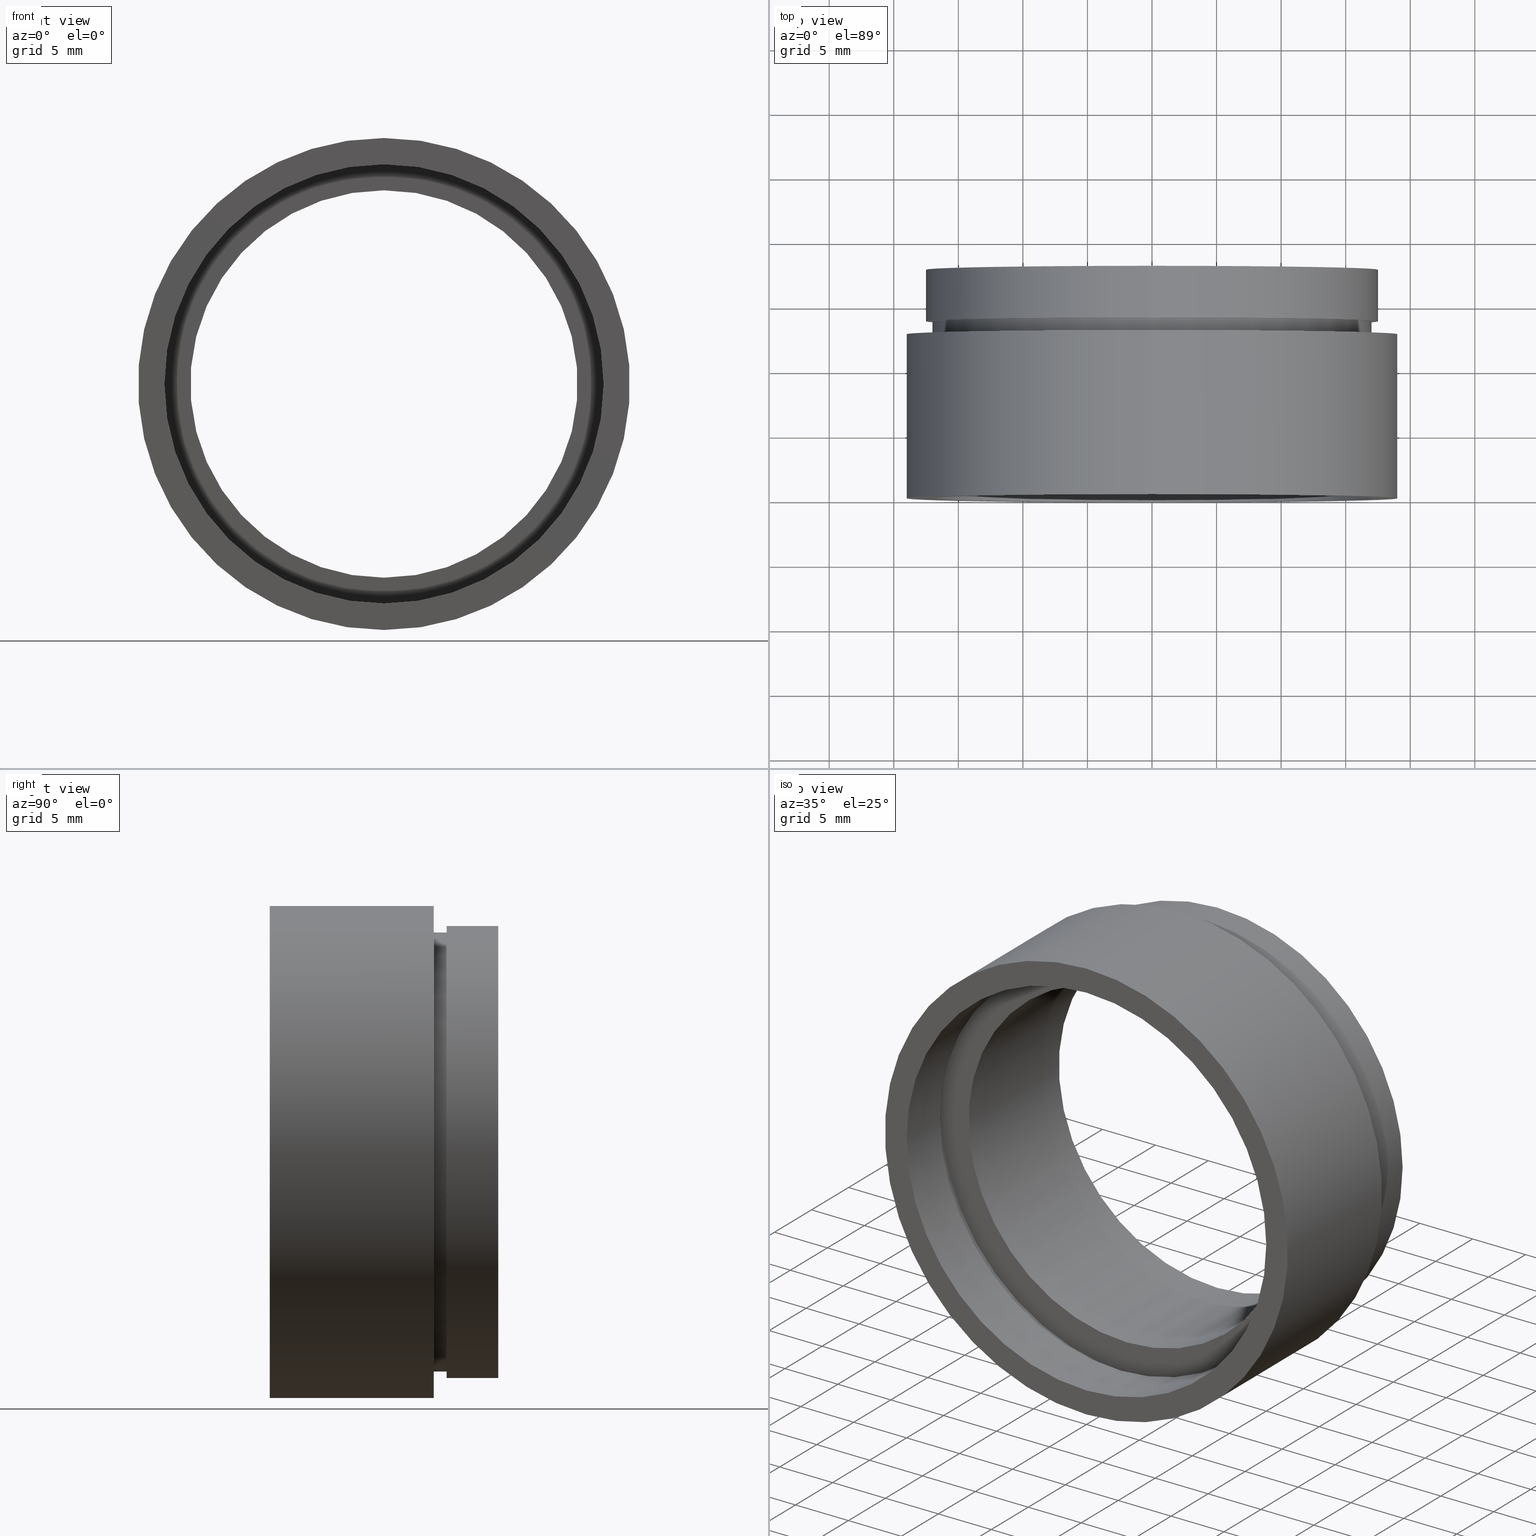
[diagram: canonical four-view strip — front | top / right | iso, engineering-drawing reading convention]
A machine part, canonical four-view strip (front | top / right | iso — engineering-drawing reading convention). The complete STEP part file that produces these views, byte-faithful:
ISO-10303-21;
HEADER;
FILE_DESCRIPTION (( 'STEP AP214' ),
    '1' );
FILE_NAME ('503037.STEP',
    '2019-09-06T01:17:15',
    ( '' ),
    ( '' ),
    'SwSTEP 2.0',
    'SolidWorks 2016',
    '' );
FILE_SCHEMA (( 'AUTOMOTIVE_DESIGN' ));
ENDSEC;

DATA;
#1 = AXIS2_PLACEMENT_3D ( 'NONE', #10, #392, #438 ) ;
#2 = VERTEX_POINT ( 'NONE', #510 ) ;
#3 = EDGE_CURVE ( 'NONE', #357, #29, #509, .T. ) ;
#4 = ADVANCED_FACE ( 'NONE', ( #138 ), #473, .F. ) ;
#5 = CARTESIAN_POINT ( 'NONE',  ( 19.05000000000002200, 12.69999999999998200, 0.0000000000000000000 ) ) ;
#6 = PRESENTATION_STYLE_ASSIGNMENT (( #280 ) ) ;
#7 = PRESENTATION_LAYER_ASSIGNMENT (  '', '', ( #603 ) ) ;
#8 = CARTESIAN_POINT ( 'NONE',  ( 0.0000000000000000000, 4.499999999999976000, 0.0000000000000000000 ) ) ;
#9 = PLANE ( 'NONE',  #194 ) ;
#10 = CARTESIAN_POINT ( 'NONE',  ( 0.0000000000000000000, 17.69999999999999200, 0.0000000000000000000 ) ) ;
#11 = FACE_OUTER_BOUND ( 'NONE', #315, .T. ) ;
#12 = CARTESIAN_POINT ( 'NONE',  ( 0.0000000000000000000, -2.775557561562891400E-014, 0.0000000000000000000 ) ) ;
#13 = CARTESIAN_POINT ( 'NONE',  ( 0.0000000000000000000, 17.69999999999999200, 15.00000000000001800 ) ) ;
#14 =( GEOMETRIC_REPRESENTATION_CONTEXT ( 3 ) GLOBAL_UNCERTAINTY_ASSIGNED_CONTEXT ( ( #154 ) ) GLOBAL_UNIT_ASSIGNED_CONTEXT ( ( #100, #337, #106 ) ) REPRESENTATION_CONTEXT ( 'NONE', 'WORKASPACE' ) );
#15 = ORIENTED_EDGE ( 'NONE', *, *, #126, .F. ) ;
#16 = DIRECTION ( 'NONE',  ( -0.0000000000000000000, 1.000000000000000000, -0.0000000000000000000 ) ) ;
#17 = PRESENTATION_STYLE_ASSIGNMENT (( #300 ) ) ;
#18 = DIRECTION ( 'NONE',  ( -0.0000000000000000000, 1.000000000000000000, -0.0000000000000000000 ) ) ;
#19 = ORIENTED_EDGE ( 'NONE', *, *, #474, .F. ) ;
#20 =( LENGTH_UNIT ( ) NAMED_UNIT ( * ) SI_UNIT ( .MILLI., .METRE. ) );
#21 = EDGE_CURVE ( 'NONE', #101, #439, #173, .T. ) ;
#22 = PLANE ( 'NONE',  #248 ) ;
#23 = STYLED_ITEM ( 'NONE', ( #606 ), #157 ) ;
#24 = AXIS2_PLACEMENT_3D ( 'NONE', #12, #18, #352 ) ;
#25 = SURFACE_STYLE_FILL_AREA ( #334 ) ;
#26 = EDGE_LOOP ( 'NONE', ( #141, #231, #495, #57 ) ) ;
#27 = AXIS2_PLACEMENT_3D ( 'NONE', #488, #215, #387 ) ;
#28 = CIRCLE ( 'NONE', #27, 15.00000000000001600 ) ;
#29 = VERTEX_POINT ( 'NONE', #330 ) ;
#30 = ORIENTED_EDGE ( 'NONE', *, *, #525, .F. ) ;
#31 = FACE_OUTER_BOUND ( 'NONE', #185, .T. ) ;
#32 = UNCERTAINTY_MEASURE_WITH_UNIT (LENGTH_MEASURE( 1.000000000000000100E-005 ), #371, 'distance_accuracy_value', 'NONE');
#33 = EDGE_CURVE ( 'NONE', #41, #47, #86, .T. ) ;
#34 = CARTESIAN_POINT ( 'NONE',  ( 0.0000000000000000000, 161.3761669434274500, 0.0000000000000000000 ) ) ;
#35 = ORIENTED_EDGE ( 'NONE', *, *, #176, .F. ) ;
#36 = EDGE_CURVE ( 'NONE', #29, #181, #410, .T. ) ;
#37 = FILL_AREA_STYLE ('',( #375 ) ) ;
#38 = FACE_BOUND ( 'NONE', #471, .T. ) ;
#39 =( NAMED_UNIT ( * ) SI_UNIT ( $, .STERADIAN. ) SOLID_ANGLE_UNIT ( ) );
#40 = MECHANICAL_DESIGN_GEOMETRIC_PRESENTATION_REPRESENTATION (  '', ( #412 ), #115 ) ;
#41 = VERTEX_POINT ( 'NONE', #354 ) ;
#42 = CARTESIAN_POINT ( 'NONE',  ( 2.081899558550502600E-015, 161.3761669434274500, -17.00000000000001800 ) ) ;
#43 = DIRECTION ( 'NONE',  ( 0.0000000000000000000, 0.0000000000000000000, 1.000000000000000000 ) ) ;
#44 = AXIS2_PLACEMENT_3D ( 'NONE', #572, #284, #379 ) ;
#45 =( LENGTH_UNIT ( ) NAMED_UNIT ( * ) SI_UNIT ( .MILLI., .METRE. ) );
#46 = APPLICATION_PROTOCOL_DEFINITION ( 'draft international standard', 'automotive_design', 1998, #197 ) ;
#47 = VERTEX_POINT ( 'NONE', #64 ) ;
#48 = CARTESIAN_POINT ( 'NONE',  ( 0.0000000000000000000, 5.499999999999976900, 15.00000000000001600 ) ) ;
#49 = DIRECTION ( 'NONE',  ( -0.0000000000000000000, 1.000000000000000000, -0.0000000000000000000 ) ) ;
#50 = FACE_BOUND ( 'NONE', #475, .T. ) ;
#51 = CARTESIAN_POINT ( 'NONE',  ( 0.0000000000000000000, 13.69999999999999000, 17.00000000000001800 ) ) ;
#52 =( NAMED_UNIT ( * ) SI_UNIT ( $, .STERADIAN. ) SOLID_ANGLE_UNIT ( ) );
#53 = EDGE_CURVE ( 'NONE', #357, #168, #269, .T. ) ;
#54 = EDGE_CURVE ( 'NONE', #556, #381, #310, .T. ) ;
#55 = SURFACE_STYLE_FILL_AREA ( #165 ) ;
#56 = CARTESIAN_POINT ( 'NONE',  ( 0.0000000000000000000, 13.69999999999999000, 0.0000000000000000000 ) ) ;
#57 = ORIENTED_EDGE ( 'NONE', *, *, #502, .F. ) ;
#58 = PRODUCT_RELATED_PRODUCT_CATEGORY ( 'part', '', ( #443 ) ) ;
#59 = CARTESIAN_POINT ( 'NONE',  ( 0.0000000000000000000, 161.3761669434274500, 17.50000000000002800 ) ) ;
#60 = CYLINDRICAL_SURFACE ( 'NONE', #414, 17.50000000000002800 ) ;
#61 = CARTESIAN_POINT ( 'NONE',  ( 2.081899558550503400E-015, 4.499999999999976000, -17.00000000000002500 ) ) ;
#62 = DIRECTION ( 'NONE',  ( 0.0000000000000000000, 0.0000000000000000000, 1.000000000000000000 ) ) ;
#63 = STYLED_ITEM ( 'NONE', ( #290 ), #514 ) ;
#64 = CARTESIAN_POINT ( 'NONE',  ( 0.0000000000000000000, 12.69999999999998900, 19.05000000000002200 ) ) ;
#65 = DIRECTION ( 'NONE',  ( -0.0000000000000000000, 1.000000000000000000, -0.0000000000000000000 ) ) ;
#66 = AXIS2_PLACEMENT_3D ( 'NONE', #71, #65, #309 ) ;
#67 = CARTESIAN_POINT ( 'NONE',  ( 0.0000000000000000000, 12.69999999999998900, 0.0000000000000000000 ) ) ;
#68 = ORIENTED_EDGE ( 'NONE', *, *, #402, .T. ) ;
#69 = DIRECTION ( 'NONE',  ( -0.0000000000000000000, 1.000000000000000000, -0.0000000000000000000 ) ) ;
#70 = FILL_AREA_STYLE ('',( #397 ) ) ;
#71 = CARTESIAN_POINT ( 'NONE',  ( 0.0000000000000000000, -2.775557561562891400E-014, 0.0000000000000000000 ) ) ;
#72 = DIRECTION ( 'NONE',  ( -0.0000000000000000000, 1.000000000000000000, -0.0000000000000000000 ) ) ;
#73 = ORIENTED_EDGE ( 'NONE', *, *, #21, .F. ) ;
#74 = CARTESIAN_POINT ( 'NONE',  ( 0.0000000000000000000, 12.69999999999998900, 0.0000000000000000000 ) ) ;
#75 = PRESENTATION_LAYER_ASSIGNMENT (  '', '', ( #232 ) ) ;
#76 = EDGE_CURVE ( 'NONE', #605, #503, #413, .T. ) ;
#77 = LINE ( 'NONE', #531, #84 ) ;
#78 = ORIENTED_EDGE ( 'NONE', *, *, #137, .T. ) ;
#79 = ORIENTED_EDGE ( 'NONE', *, *, #502, .T. ) ;
#80 =( GEOMETRIC_REPRESENTATION_CONTEXT ( 3 ) GLOBAL_UNCERTAINTY_ASSIGNED_CONTEXT ( ( #32 ) ) GLOBAL_UNIT_ASSIGNED_CONTEXT ( ( #371, #236, #617 ) ) REPRESENTATION_CONTEXT ( 'NONE', 'WORKASPACE' ) );
#81 = DIRECTION ( 'NONE',  ( -0.0000000000000000000, 1.000000000000000000, -0.0000000000000000000 ) ) ;
#82 = ORIENTED_EDGE ( 'NONE', *, *, #272, .T. ) ;
#83 = AXIS2_PLACEMENT_3D ( 'NONE', #299, #105, #246 ) ;
#84 = VECTOR ( 'NONE', #196, 1000.000000000000000 ) ;
#85 = ORIENTED_EDGE ( 'NONE', *, *, #298, .F. ) ;
#86 = CIRCLE ( 'NONE', #136, 19.05000000000002200 ) ;
#87 = EDGE_CURVE ( 'NONE', #381, #556, #273, .T. ) ;
#88 = EDGE_LOOP ( 'NONE', ( #538, #336, #550, #270 ) ) ;
#89 = FACE_OUTER_BOUND ( 'NONE', #134, .T. ) ;
#90 = COLOUR_RGB ( '',1.000000000000000000, 1.000000000000000000, 1.000000000000000000 ) ;
#91 = PRESENTATION_LAYER_ASSIGNMENT (  '', '', ( #23 ) ) ;
#92 = ORIENTED_EDGE ( 'NONE', *, *, #546, .T. ) ;
#93 =( NAMED_UNIT ( * ) PLANE_ANGLE_UNIT ( ) SI_UNIT ( $, .RADIAN. ) );
#94 = DIRECTION ( 'NONE',  ( -0.0000000000000000000, 1.000000000000000000, -0.0000000000000000000 ) ) ;
#95 =( GEOMETRIC_REPRESENTATION_CONTEXT ( 3 ) GLOBAL_UNCERTAINTY_ASSIGNED_CONTEXT ( ( #430 ) ) GLOBAL_UNIT_ASSIGNED_CONTEXT ( ( #341, #470, #52 ) ) REPRESENTATION_CONTEXT ( 'NONE', 'WORKASPACE' ) );
#96 = SURFACE_SIDE_STYLE ('',( #230 ) ) ;
#97 = EDGE_LOOP ( 'NONE', ( #342, #393 ) ) ;
#98 = MECHANICAL_DESIGN_GEOMETRIC_PRESENTATION_REPRESENTATION (  '', ( #258 ), #317 ) ;
#99 = COLOUR_RGB ( '',1.000000000000000000, 1.000000000000000000, 1.000000000000000000 ) ;
#100 =( LENGTH_UNIT ( ) NAMED_UNIT ( * ) SI_UNIT ( .MILLI., .METRE. ) );
#101 = VERTEX_POINT ( 'NONE', #542 ) ;
#102 = ADVANCED_FACE ( 'NONE', ( #506 ), #131, .F. ) ;
#103 = CARTESIAN_POINT ( 'NONE',  ( 0.0000000000000000000, 4.499999999999976000, 0.0000000000000000000 ) ) ;
#104 = FILL_AREA_STYLE_COLOUR ( '', #278 ) ;
#105 = DIRECTION ( 'NONE',  ( -0.0000000000000000000, 1.000000000000000000, -0.0000000000000000000 ) ) ;
#106 =( NAMED_UNIT ( * ) SI_UNIT ( $, .STERADIAN. ) SOLID_ANGLE_UNIT ( ) );
#107 = VERTEX_POINT ( 'NONE', #119 ) ;
#108 = CARTESIAN_POINT ( 'NONE',  ( 2.155378366499344400E-015, 5.499999999999976900, -17.60000000000002300 ) ) ;
#109 =( GEOMETRIC_REPRESENTATION_CONTEXT ( 3 ) GLOBAL_UNCERTAINTY_ASSIGNED_CONTEXT ( ( #366 ) ) GLOBAL_UNIT_ASSIGNED_CONTEXT ( ( #238, #537, #485 ) ) REPRESENTATION_CONTEXT ( 'NONE', 'WORKASPACE' ) );
#110 = ORIENTED_EDGE ( 'NONE', *, *, #428, .T. ) ;
#111 = ORIENTED_EDGE ( 'NONE', *, *, #368, .T. ) ;
#112 = EDGE_CURVE ( 'NONE', #286, #434, #28, .T. ) ;
#113 = ADVANCED_FACE ( 'NONE', ( #31, #575 ), #9, .F. ) ;
#114 = CARTESIAN_POINT ( 'NONE',  ( 2.332952152375710400E-015, -2.775557561562891400E-014, -19.05000000000002200 ) ) ;
#115 =( GEOMETRIC_REPRESENTATION_CONTEXT ( 3 ) GLOBAL_UNCERTAINTY_ASSIGNED_CONTEXT ( ( #429 ) ) GLOBAL_UNIT_ASSIGNED_CONTEXT ( ( #254, #259, #584 ) ) REPRESENTATION_CONTEXT ( 'NONE', 'WORKASPACE' ) );
#116 = CARTESIAN_POINT ( 'NONE',  ( 0.0000000000000000000, 13.69999999999999000, 0.0000000000000000000 ) ) ;
#117 = DIRECTION ( 'NONE',  ( -0.0000000000000000000, 1.000000000000000000, 0.0000000000000000000 ) ) ;
#118 = CIRCLE ( 'NONE', #568, 17.50000000000002800 ) ;
#119 = CARTESIAN_POINT ( 'NONE',  ( 0.0000000000000000000, 4.499999999999976000, 17.60000000000002300 ) ) ;
#120 = DIRECTION ( 'NONE',  ( -0.0000000000000000000, 1.000000000000000000, -0.0000000000000000000 ) ) ;
#121 = SURFACE_SIDE_STYLE ('',( #526 ) ) ;
#122 = COLOUR_RGB ( '',1.000000000000000000, 1.000000000000000000, 1.000000000000000000 ) ;
#123 = DIRECTION ( 'NONE',  ( -0.0000000000000000000, 1.000000000000000000, -0.0000000000000000000 ) ) ;
#124 = ORIENTED_EDGE ( 'NONE', *, *, #525, .T. ) ;
#125 = CARTESIAN_POINT ( 'NONE',  ( 0.0000000000000000000, 13.69999999999999000, 17.50000000000002800 ) ) ;
#126 = EDGE_CURVE ( 'NONE', #135, #419, #164, .T. ) ;
#127 = ORIENTED_EDGE ( 'NONE', *, *, #608, .F. ) ;
#128 = PRESENTATION_LAYER_ASSIGNMENT (  '', '', ( #548 ) ) ;
#129 = AXIS2_PLACEMENT_3D ( 'NONE', #5, #588, #398 ) ;
#130 = VERTEX_POINT ( 'NONE', #114 ) ;
#131 = CYLINDRICAL_SURFACE ( 'NONE', #166, 17.60000000000002300 ) ;
#132 = EDGE_LOOP ( 'NONE', ( #268, #247, #162, #549 ) ) ;
#133 = PRESENTATION_STYLE_ASSIGNMENT (( #192 ) ) ;
#134 = EDGE_LOOP ( 'NONE', ( #455, #92, #30, #415 ) ) ;
#135 = VERTEX_POINT ( 'NONE', #13 ) ;
#136 = AXIS2_PLACEMENT_3D ( 'NONE', #67, #441, #167 ) ;
#137 = EDGE_CURVE ( 'NONE', #130, #201, #321, .T. ) ;
#138 = FACE_OUTER_BOUND ( 'NONE', #88, .T. ) ;
#139 = DIRECTION ( 'NONE',  ( 0.0000000000000000000, -1.000000000000000000, 0.0000000000000000000 ) ) ;
#140 = AXIS2_PLACEMENT_3D ( 'NONE', #34, #504, #369 ) ;
#141 = ORIENTED_EDGE ( 'NONE', *, *, #576, .F. ) ;
#142 = SURFACE_SIDE_STYLE ('',( #319 ) ) ;
#143 = CARTESIAN_POINT ( 'NONE',  ( 0.0000000000000000000, 0.0000000000000000000, 0.0000000000000000000 ) ) ;
#144 = ADVANCED_FACE ( 'NONE', ( #338, #304 ), #536, .F. ) ;
#145 = ORIENTED_EDGE ( 'NONE', *, *, #36, .T. ) ;
#146 = DIRECTION ( 'NONE',  ( -0.0000000000000000000, 1.000000000000000000, -0.0000000000000000000 ) ) ;
#147 = PRODUCT_CONTEXT ( 'NONE', #424, 'mechanical' ) ;
#148 = ADVANCED_FACE ( 'NONE', ( #198 ), #490, .F. ) ;
#149 = CARTESIAN_POINT ( 'NONE',  ( 0.0000000000000000000, 4.499999999999976000, 0.0000000000000000000 ) ) ;
#150 = EDGE_CURVE ( 'NONE', #605, #621, #541, .T. ) ;
#151 = ORIENTED_EDGE ( 'NONE', *, *, #601, .T. ) ;
#152 = MANIFOLD_SOLID_BREP ( '��ת1', #175 ) ;
#153 = CARTESIAN_POINT ( 'NONE',  ( 0.0000000000000000000, 161.3761669434274500, 0.0000000000000000000 ) ) ;
#154 = UNCERTAINTY_MEASURE_WITH_UNIT (LENGTH_MEASURE( 1.000000000000000100E-005 ), #100, 'distance_accuracy_value', 'NONE');
#155 = AXIS2_PLACEMENT_3D ( 'NONE', #467, #324, #566 ) ;
#156 = SURFACE_STYLE_FILL_AREA ( #301 ) ;
#157 = ADVANCED_FACE ( 'NONE', ( #619 ), #582, .F. ) ;
#158 = CARTESIAN_POINT ( 'NONE',  ( 0.0000000000000000000, 12.69999999999998900, 0.0000000000000000000 ) ) ;
#159 = AXIS2_PLACEMENT_3D ( 'NONE', #143, #296, #289 ) ;
#160 = VECTOR ( 'NONE', #146, 1000.000000000000000 ) ;
#161 = DIRECTION ( 'NONE',  ( 0.0000000000000000000, 0.0000000000000000000, 1.000000000000000000 ) ) ;
#162 = ORIENTED_EDGE ( 'NONE', *, *, #245, .F. ) ;
#163 = CARTESIAN_POINT ( 'NONE',  ( 0.0000000000000000000, 161.3761669434274500, 17.00000000000001800 ) ) ;
#164 = CIRCLE ( 'NONE', #226, 15.00000000000001800 ) ;
#165 = FILL_AREA_STYLE ('',( #210 ) ) ;
#166 = AXIS2_PLACEMENT_3D ( 'NONE', #545, #349, #62 ) ;
#167 = DIRECTION ( 'NONE',  ( 0.0000000000000000000, 0.0000000000000000000, 1.000000000000000000 ) ) ;
#168 = VERTEX_POINT ( 'NONE', #125 ) ;
#169 =( LENGTH_UNIT ( ) NAMED_UNIT ( * ) SI_UNIT ( .MILLI., .METRE. ) );
#170 = DIRECTION ( 'NONE',  ( 0.0000000000000000000, 0.0000000000000000000, 1.000000000000000000 ) ) ;
#171 = ORIENTED_EDGE ( 'NONE', *, *, #272, .F. ) ;
#172 = DIRECTION ( 'NONE',  ( -0.0000000000000000000, 1.000000000000000000, -0.0000000000000000000 ) ) ;
#173 = CIRCLE ( 'NONE', #203, 17.00000000000002500 ) ;
#174 = AXIS2_PLACEMENT_3D ( 'NONE', #179, #555, #406 ) ;
#175 = CLOSED_SHELL ( 'NONE', ( #157, #339, #4, #243, #624, #616, #476, #386, #144, #482, #113, #205, #294, #287, #522, #102, #200, #148 ) ) ;
#176 = EDGE_CURVE ( 'NONE', #621, #605, #445, .T. ) ;
#177 = FACE_BOUND ( 'NONE', #491, .T. ) ;
#178 = ORIENTED_EDGE ( 'NONE', *, *, #112, .T. ) ;
#179 = CARTESIAN_POINT ( 'NONE',  ( 0.0000000000000000000, 13.69999999999999000, 0.0000000000000000000 ) ) ;
#180 = CARTESIAN_POINT ( 'NONE',  ( 17.00000000000002500, 4.499999999999983100, 0.0000000000000000000 ) ) ;
#181 = VERTEX_POINT ( 'NONE', #311 ) ;
#182 = COLOUR_RGB ( '',1.000000000000000000, 1.000000000000000000, 1.000000000000000000 ) ;
#183 = EDGE_CURVE ( 'NONE', #365, #381, #557, .T. ) ;
#184 = CARTESIAN_POINT ( 'NONE',  ( 0.0000000000000000000, 161.3761669434274500, 17.00000000000002100 ) ) ;
#185 = EDGE_LOOP ( 'NONE', ( #559, #227 ) ) ;
#186 = PRODUCT_DEFINITION_CONTEXT ( 'detailed design', #197, 'design' ) ;
#187 = PRESENTATION_LAYER_ASSIGNMENT (  '', '', ( #497 ) ) ;
#188 = VECTOR ( 'NONE', #120, 1000.000000000000000 ) ;
#189 = DIRECTION ( 'NONE',  ( -0.0000000000000000000, 1.000000000000000000, -0.0000000000000000000 ) ) ;
#190 = PRESENTATION_LAYER_ASSIGNMENT (  '', '', ( #63 ) ) ;
#191 = CARTESIAN_POINT ( 'NONE',  ( 0.0000000000000000000, 17.69999999999999200, 0.0000000000000000000 ) ) ;
#192 = SURFACE_STYLE_USAGE ( .BOTH. , #563 ) ;
#193 = ORIENTED_EDGE ( 'NONE', *, *, #206, .T. ) ;
#194 = AXIS2_PLACEMENT_3D ( 'NONE', #257, #117, #170 ) ;
#195 = FACE_OUTER_BOUND ( 'NONE', #255, .T. ) ;
#196 = DIRECTION ( 'NONE',  ( -0.0000000000000000000, 1.000000000000000000, -0.0000000000000000000 ) ) ;
#197 = APPLICATION_CONTEXT ( 'automotive_design' ) ;
#198 = FACE_OUTER_BOUND ( 'NONE', #446, .T. ) ;
#199 = DIRECTION ( 'NONE',  ( 0.0000000000000000000, 0.0000000000000000000, 1.000000000000000000 ) ) ;
#200 = ADVANCED_FACE ( 'NONE', ( #50, #271 ), #22, .F. ) ;
#201 = VERTEX_POINT ( 'NONE', #229 ) ;
#202 = DIRECTION ( 'NONE',  ( 0.0000000000000000000, 0.0000000000000000000, 1.000000000000000000 ) ) ;
#203 = AXIS2_PLACEMENT_3D ( 'NONE', #592, #16, #395 ) ;
#204 = CYLINDRICAL_SURFACE ( 'NONE', #499, 19.05000000000002200 ) ;
#205 = ADVANCED_FACE ( 'NONE', ( #408 ), #367, .T. ) ;
#206 = EDGE_CURVE ( 'NONE', #2, #439, #458, .T. ) ;
#207 = CARTESIAN_POINT ( 'NONE',  ( 0.0000000000000000000, 161.3761669434274500, 0.0000000000000000000 ) ) ;
#208 = FILL_AREA_STYLE_COLOUR ( '', #275 ) ;
#209 = DIRECTION ( 'NONE',  ( -0.0000000000000000000, 1.000000000000000000, -0.0000000000000000000 ) ) ;
#210 = FILL_AREA_STYLE_COLOUR ( '', #182 ) ;
#211 = ORIENTED_EDGE ( 'NONE', *, *, #36, .F. ) ;
#212 = CARTESIAN_POINT ( 'NONE',  ( 0.0000000000000000000, 5.499999999999976900, 17.60000000000002300 ) ) ;
#213 = VECTOR ( 'NONE', #295, 1000.000000000000000 ) ;
#214 = SURFACE_STYLE_FILL_AREA ( #613 ) ;
#215 = DIRECTION ( 'NONE',  ( -0.0000000000000000000, 1.000000000000000000, -0.0000000000000000000 ) ) ;
#216 = EDGE_LOOP ( 'NONE', ( #171, #306, #297, #228 ) ) ;
#217 = SURFACE_STYLE_USAGE ( .BOTH. , #540 ) ;
#218 = ORIENTED_EDGE ( 'NONE', *, *, #219, .F. ) ;
#219 = EDGE_CURVE ( 'NONE', #242, #101, #360, .T. ) ;
#220 = UNCERTAINTY_MEASURE_WITH_UNIT (LENGTH_MEASURE( 1.000000000000000100E-005 ), #169, 'distance_accuracy_value', 'NONE');
#221 = CIRCLE ( 'NONE', #585, 17.00000000000001800 ) ;
#222 = FACE_OUTER_BOUND ( 'NONE', #589, .T. ) ;
#223 = MECHANICAL_DESIGN_GEOMETRIC_PRESENTATION_REPRESENTATION (  '', ( #548 ), #80 ) ;
#224 = AXIS2_PLACEMENT_3D ( 'NONE', #103, #620, #523 ) ;
#225 = VERTEX_POINT ( 'NONE', #276 ) ;
#226 = AXIS2_PLACEMENT_3D ( 'NONE', #590, #594, #308 ) ;
#227 = ORIENTED_EDGE ( 'NONE', *, *, #53, .F. ) ;
#228 = ORIENTED_EDGE ( 'NONE', *, *, #601, .F. ) ;
#229 = CARTESIAN_POINT ( 'NONE',  ( 0.0000000000000000000, -2.775557561562891400E-014, 19.05000000000002200 ) ) ;
#230 = SURFACE_STYLE_FILL_AREA ( #331 ) ;
#231 = ORIENTED_EDGE ( 'NONE', *, *, #183, .T. ) ;
#232 = STYLED_ITEM ( 'NONE', ( #6 ), #4 ) ;
#233 = ORIENTED_EDGE ( 'NONE', *, *, #33, .T. ) ;
#234 = CARTESIAN_POINT ( 'NONE',  ( 17.50000000000002800, 17.69999999999998500, 0.0000000000000000000 ) ) ;
#235 = PRODUCT_DEFINITION_SHAPE ( 'NONE', 'NONE',  #372 ) ;
#236 =( NAMED_UNIT ( * ) PLANE_ANGLE_UNIT ( ) SI_UNIT ( $, .RADIAN. ) );
#237 = SURFACE_STYLE_USAGE ( .BOTH. , #142 ) ;
#238 =( LENGTH_UNIT ( ) NAMED_UNIT ( * ) SI_UNIT ( .MILLI., .METRE. ) );
#239 = DIRECTION ( 'NONE',  ( 0.0000000000000000000, 0.0000000000000000000, 1.000000000000000000 ) ) ;
#240 = CARTESIAN_POINT ( 'NONE',  ( 2.155378366499344400E-015, 4.499999999999976000, -17.60000000000002300 ) ) ;
#241 = DIRECTION ( 'NONE',  ( -0.0000000000000000000, 1.000000000000000000, -0.0000000000000000000 ) ) ;
#242 = VERTEX_POINT ( 'NONE', #279 ) ;
#243 = ADVANCED_FACE ( 'NONE', ( #423 ), #60, .T. ) ;
#244 = CARTESIAN_POINT ( 'NONE',  ( 0.0000000000000000000, -2.775557561562891400E-014, 0.0000000000000000000 ) ) ;
#245 = EDGE_CURVE ( 'NONE', #181, #29, #553, .T. ) ;
#246 = DIRECTION ( 'NONE',  ( 0.0000000000000000000, 0.0000000000000000000, 1.000000000000000000 ) ) ;
#247 = ORIENTED_EDGE ( 'NONE', *, *, #3, .T. ) ;
#248 = AXIS2_PLACEMENT_3D ( 'NONE', #180, #595, #612 ) ;
#249 = CARTESIAN_POINT ( 'NONE',  ( 17.60000000000002300, 5.499999999999983100, 0.0000000000000000000 ) ) ;
#250 = CARTESIAN_POINT ( 'NONE',  ( 0.0000000000000000000, 12.69999999999998900, 17.00000000000001800 ) ) ;
#251 = MECHANICAL_DESIGN_GEOMETRIC_PRESENTATION_REPRESENTATION (  '', ( #63 ), #14 ) ;
#252 = CIRCLE ( 'NONE', #604, 15.00000000000001600 ) ;
#253 = CARTESIAN_POINT ( 'NONE',  ( 2.332952152375710400E-015, 161.3761669434274500, -19.05000000000002200 ) ) ;
#254 =( LENGTH_UNIT ( ) NAMED_UNIT ( * ) SI_UNIT ( .MILLI., .METRE. ) );
#255 = EDGE_LOOP ( 'NONE', ( #530, #82, #316, #596 ) ) ;
#256 = CARTESIAN_POINT ( 'NONE',  ( 0.0000000000000000000, 17.69999999999999200, 0.0000000000000000000 ) ) ;
#257 = CARTESIAN_POINT ( 'NONE',  ( 17.00000000000001800, 13.69999999999998300, 0.0000000000000000000 ) ) ;
#258 = STYLED_ITEM ( 'NONE', ( #17 ), #148 ) ;
#259 =( NAMED_UNIT ( * ) PLANE_ANGLE_UNIT ( ) SI_UNIT ( $, .RADIAN. ) );
#260 = ORIENTED_EDGE ( 'NONE', *, *, #206, .F. ) ;
#261 = CARTESIAN_POINT ( 'NONE',  ( 0.0000000000000000000, 161.3761669434274500, 0.0000000000000000000 ) ) ;
#262 =( NAMED_UNIT ( * ) PLANE_ANGLE_UNIT ( ) SI_UNIT ( $, .RADIAN. ) );
#263 = ORIENTED_EDGE ( 'NONE', *, *, #402, .F. ) ;
#264 = AXIS2_PLACEMENT_3D ( 'NONE', #362, #81, #350 ) ;
#265 = VECTOR ( 'NONE', #376, 1000.000000000000000 ) ;
#266 = CIRCLE ( 'NONE', #24, 19.05000000000002200 ) ;
#267 = VECTOR ( 'NONE', #189, 1000.000000000000000 ) ;
#268 = ORIENTED_EDGE ( 'NONE', *, *, #561, .T. ) ;
#269 = CIRCLE ( 'NONE', #174, 17.50000000000002800 ) ;
#270 = ORIENTED_EDGE ( 'NONE', *, *, #448, .F. ) ;
#271 = FACE_OUTER_BOUND ( 'NONE', #564, .T. ) ;
#272 = EDGE_CURVE ( 'NONE', #621, #225, #600, .T. ) ;
#273 = CIRCLE ( 'NONE', #494, 17.60000000000002300 ) ;
#274 = DIRECTION ( 'NONE',  ( -0.0000000000000000000, 1.000000000000000000, -0.0000000000000000000 ) ) ;
#275 = COLOUR_RGB ( '',1.000000000000000000, 1.000000000000000000, 1.000000000000000000 ) ;
#276 = CARTESIAN_POINT ( 'NONE',  ( 2.081899558550502600E-015, 13.69999999999999000, -17.00000000000001800 ) ) ;
#277 =( GEOMETRIC_REPRESENTATION_CONTEXT ( 3 ) GLOBAL_UNCERTAINTY_ASSIGNED_CONTEXT ( ( #347 ) ) GLOBAL_UNIT_ASSIGNED_CONTEXT ( ( #370, #93, #416 ) ) REPRESENTATION_CONTEXT ( 'NONE', 'WORKASPACE' ) );
#278 = COLOUR_RGB ( '',1.000000000000000000, 1.000000000000000000, 1.000000000000000000 ) ;
#279 = CARTESIAN_POINT ( 'NONE',  ( 0.0000000000000000000, -2.775557561562891400E-014, 17.00000000000002100 ) ) ;
#280 = SURFACE_STYLE_USAGE ( .BOTH. , #388 ) ;
#281 = AXIS2_PLACEMENT_3D ( 'NONE', #481, #49, #43 ) ;
#282 = SURFACE_STYLE_USAGE ( .BOTH. , #96 ) ;
#283 = CARTESIAN_POINT ( 'NONE',  ( 1.836970198721032000E-015, 161.3761669434274500, -15.00000000000001600 ) ) ;
#284 = DIRECTION ( 'NONE',  ( -0.0000000000000000000, 1.000000000000000000, -0.0000000000000000000 ) ) ;
#285 = PRESENTATION_LAYER_ASSIGNMENT (  '', '', ( #258 ) ) ;
#286 = VERTEX_POINT ( 'NONE', #421 ) ;
#287 = ADVANCED_FACE ( 'NONE', ( #222 ), #498, .F. ) ;
#288 = DIRECTION ( 'NONE',  ( 0.0000000000000000000, 0.0000000000000000000, 1.000000000000000000 ) ) ;
#289 = DIRECTION ( 'NONE',  ( 1.000000000000000000, 0.0000000000000000000, 0.0000000000000000000 ) ) ;
#290 = PRESENTATION_STYLE_ASSIGNMENT (( #516 ) ) ;
#291 = VECTOR ( 'NONE', #469, 1000.000000000000000 ) ;
#292 = DIRECTION ( 'NONE',  ( -0.0000000000000000000, 1.000000000000000000, -0.0000000000000000000 ) ) ;
#293 = DIRECTION ( 'NONE',  ( -0.0000000000000000000, 1.000000000000000000, -0.0000000000000000000 ) ) ;
#294 = ADVANCED_FACE ( 'NONE', ( #38, #11 ), #507, .F. ) ;
#295 = DIRECTION ( 'NONE',  ( -0.0000000000000000000, 1.000000000000000000, -0.0000000000000000000 ) ) ;
#296 = DIRECTION ( 'NONE',  ( 0.0000000000000000000, 0.0000000000000000000, 1.000000000000000000 ) ) ;
#297 = ORIENTED_EDGE ( 'NONE', *, *, #76, .T. ) ;
#298 = EDGE_CURVE ( 'NONE', #2, #242, #512, .T. ) ;
#299 = CARTESIAN_POINT ( 'NONE',  ( 0.0000000000000000000, 161.3761669434274500, 0.0000000000000000000 ) ) ;
#300 = SURFACE_STYLE_USAGE ( .BOTH. , #121 ) ;
#301 = FILL_AREA_STYLE ('',( #208 ) ) ;
#302 = FACE_OUTER_BOUND ( 'NONE', #216, .T. ) ;
#303 = DIRECTION ( 'NONE',  ( -0.0000000000000000000, 1.000000000000000000, -0.0000000000000000000 ) ) ;
#304 = FACE_OUTER_BOUND ( 'NONE', #401, .T. ) ;
#305 = DIRECTION ( 'NONE',  ( -0.0000000000000000000, 1.000000000000000000, -0.0000000000000000000 ) ) ;
#306 = ORIENTED_EDGE ( 'NONE', *, *, #176, .T. ) ;
#307 = DIRECTION ( 'NONE',  ( -0.0000000000000000000, 1.000000000000000000, -0.0000000000000000000 ) ) ;
#308 = DIRECTION ( 'NONE',  ( 0.0000000000000000000, 0.0000000000000000000, 1.000000000000000000 ) ) ;
#309 = DIRECTION ( 'NONE',  ( 0.0000000000000000000, 0.0000000000000000000, 1.000000000000000000 ) ) ;
#310 = CIRCLE ( 'NONE', #264, 17.60000000000002300 ) ;
#311 = CARTESIAN_POINT ( 'NONE',  ( 0.0000000000000000000, 17.69999999999999200, 17.50000000000002800 ) ) ;
#312 = ORIENTED_EDGE ( 'NONE', *, *, #463, .T. ) ;
#313 = LINE ( 'NONE', #253, #188 ) ;
#314 = AXIS2_PLACEMENT_3D ( 'NONE', #74, #597, #492 ) ;
#315 = EDGE_LOOP ( 'NONE', ( #611, #145 ) ) ;
#316 = ORIENTED_EDGE ( 'NONE', *, *, #428, .F. ) ;
#317 =( GEOMETRIC_REPRESENTATION_CONTEXT ( 3 ) GLOBAL_UNCERTAINTY_ASSIGNED_CONTEXT ( ( #220 ) ) GLOBAL_UNIT_ASSIGNED_CONTEXT ( ( #169, #346, #436 ) ) REPRESENTATION_CONTEXT ( 'NONE', 'WORKASPACE' ) );
#318 = CIRCLE ( 'NONE', #437, 17.60000000000002300 ) ;
#319 = SURFACE_STYLE_FILL_AREA ( #37 ) ;
#320 = EDGE_CURVE ( 'NONE', #286, #419, #390, .T. ) ;
#321 = CIRCLE ( 'NONE', #66, 19.05000000000002200 ) ;
#322 = ORIENTED_EDGE ( 'NONE', *, *, #496, .T. ) ;
#323 = UNCERTAINTY_MEASURE_WITH_UNIT (LENGTH_MEASURE( 1.000000000000000100E-005 ), #20, 'distance_accuracy_value', 'NONE');
#324 = DIRECTION ( 'NONE',  ( -0.0000000000000000000, 1.000000000000000000, -0.0000000000000000000 ) ) ;
#325 = VECTOR ( 'NONE', #292, 1000.000000000000000 ) ;
#326 = AXIS2_PLACEMENT_3D ( 'NONE', #567, #94, #614 ) ;
#327 = DIRECTION ( 'NONE',  ( 0.0000000000000000000, 0.0000000000000000000, 1.000000000000000000 ) ) ;
#328 = EDGE_LOOP ( 'NONE', ( #456, #78, #322, #579 ) ) ;
#329 = CARTESIAN_POINT ( 'NONE',  ( 2.081899558550503000E-015, 161.3761669434274500, -17.00000000000002100 ) ) ;
#330 = CARTESIAN_POINT ( 'NONE',  ( 2.143131898507871800E-015, 17.69999999999999200, -17.50000000000002800 ) ) ;
#331 = FILL_AREA_STYLE ('',( #615 ) ) ;
#332 = ORIENTED_EDGE ( 'NONE', *, *, #608, .T. ) ;
#333 = LINE ( 'NONE', #581, #213 ) ;
#334 = FILL_AREA_STYLE ('',( #104 ) ) ;
#335 = PRESENTATION_STYLE_ASSIGNMENT (( #237 ) ) ;
#336 = ORIENTED_EDGE ( 'NONE', *, *, #320, .T. ) ;
#337 =( NAMED_UNIT ( * ) PLANE_ANGLE_UNIT ( ) SI_UNIT ( $, .RADIAN. ) );
#338 = FACE_BOUND ( 'NONE', #451, .T. ) ;
#339 = ADVANCED_FACE ( 'NONE', ( #374 ), #533, .F. ) ;
#340 = DIRECTION ( 'NONE',  ( 0.0000000000000000000, 0.0000000000000000000, 1.000000000000000000 ) ) ;
#341 =( LENGTH_UNIT ( ) NAMED_UNIT ( * ) SI_UNIT ( .MILLI., .METRE. ) );
#342 = ORIENTED_EDGE ( 'NONE', *, *, #558, .F. ) ;
#343 = CIRCLE ( 'NONE', #224, 17.00000000000002500 ) ;
#344 = PRESENTATION_LAYER_ASSIGNMENT (  '', '', ( #412 ) ) ;
#345 = CARTESIAN_POINT ( 'NONE',  ( 0.0000000000000000000, -2.775557561562891400E-014, 0.0000000000000000000 ) ) ;
#346 =( NAMED_UNIT ( * ) PLANE_ANGLE_UNIT ( ) SI_UNIT ( $, .RADIAN. ) );
#347 = UNCERTAINTY_MEASURE_WITH_UNIT (LENGTH_MEASURE( 1.000000000000000100E-005 ), #370, 'distance_accuracy_value', 'NONE');
#348 = DIRECTION ( 'NONE',  ( 0.0000000000000000000, 0.0000000000000000000, 1.000000000000000000 ) ) ;
#349 = DIRECTION ( 'NONE',  ( -0.0000000000000000000, 1.000000000000000000, -0.0000000000000000000 ) ) ;
#350 = DIRECTION ( 'NONE',  ( 0.0000000000000000000, 0.0000000000000000000, 1.000000000000000000 ) ) ;
#351 = ORIENTED_EDGE ( 'NONE', *, *, #219, .T. ) ;
#352 = DIRECTION ( 'NONE',  ( 0.0000000000000000000, 0.0000000000000000000, 1.000000000000000000 ) ) ;
#353 = FILL_AREA_STYLE_COLOUR ( '', #122 ) ;
#354 = CARTESIAN_POINT ( 'NONE',  ( 2.332952152375710400E-015, 12.69999999999998900, -19.05000000000002200 ) ) ;
#355 = CYLINDRICAL_SURFACE ( 'NONE', #281, 19.05000000000002200 ) ;
#356 = DIRECTION ( 'NONE',  ( 0.0000000000000000000, 0.0000000000000000000, 1.000000000000000000 ) ) ;
#357 = VERTEX_POINT ( 'NONE', #384 ) ;
#358 =( NAMED_UNIT ( * ) SI_UNIT ( $, .STERADIAN. ) SOLID_ANGLE_UNIT ( ) );
#359 = CARTESIAN_POINT ( 'NONE',  ( 2.155378366499344400E-015, 161.3761669434274500, -17.60000000000002300 ) ) ;
#360 = LINE ( 'NONE', #184, #521 ) ;
#361 = AXIS2_PLACEMENT_3D ( 'NONE', #571, #622, #340 ) ;
#362 = CARTESIAN_POINT ( 'NONE',  ( 0.0000000000000000000, 5.499999999999976900, 0.0000000000000000000 ) ) ;
#363 = EDGE_LOOP ( 'NONE', ( #598, #127, #79, #404 ) ) ;
#364 = SURFACE_STYLE_FILL_AREA ( #493 ) ;
#365 = VERTEX_POINT ( 'NONE', #240 ) ;
#366 = UNCERTAINTY_MEASURE_WITH_UNIT (LENGTH_MEASURE( 1.000000000000000100E-005 ), #238, 'distance_accuracy_value', 'NONE');
#367 = CYLINDRICAL_SURFACE ( 'NONE', #155, 17.50000000000002800 ) ;
#368 = EDGE_CURVE ( 'NONE', #439, #101, #343, .T. ) ;
#369 = DIRECTION ( 'NONE',  ( 0.0000000000000000000, 0.0000000000000000000, 1.000000000000000000 ) ) ;
#370 =( LENGTH_UNIT ( ) NAMED_UNIT ( * ) SI_UNIT ( .MILLI., .METRE. ) );
#371 =( LENGTH_UNIT ( ) NAMED_UNIT ( * ) SI_UNIT ( .MILLI., .METRE. ) );
#372 = PRODUCT_DEFINITION ( 'δ֪', '', #409, #186 ) ;
#373 = CIRCLE ( 'NONE', #417, 17.00000000000002100 ) ;
#374 = FACE_OUTER_BOUND ( 'NONE', #26, .T. ) ;
#375 = FILL_AREA_STYLE_COLOUR ( '', #418 ) ;
#376 = DIRECTION ( 'NONE',  ( -0.0000000000000000000, 1.000000000000000000, -0.0000000000000000000 ) ) ;
#377 = SURFACE_SIDE_STYLE ('',( #25 ) ) ;
#378 = FILL_AREA_STYLE_COLOUR ( '', #99 ) ;
#379 = DIRECTION ( 'NONE',  ( 0.0000000000000000000, 0.0000000000000000000, 1.000000000000000000 ) ) ;
#380 = AXIS2_PLACEMENT_3D ( 'NONE', #158, #123, #447 ) ;
#381 = VERTEX_POINT ( 'NONE', #108 ) ;
#382 = DIRECTION ( 'NONE',  ( -0.0000000000000000000, 1.000000000000000000, -0.0000000000000000000 ) ) ;
#383 = EDGE_LOOP ( 'NONE', ( #607, #489, #312, #211 ) ) ;
#384 = CARTESIAN_POINT ( 'NONE',  ( 2.143131898507871800E-015, 13.69999999999999000, -17.50000000000002800 ) ) ;
#385 = AXIS2_PLACEMENT_3D ( 'NONE', #249, #394, #486 ) ;
#386 = ADVANCED_FACE ( 'NONE', ( #587 ), #204, .T. ) ;
#387 = DIRECTION ( 'NONE',  ( 0.0000000000000000000, 0.0000000000000000000, 1.000000000000000000 ) ) ;
#388 = SURFACE_SIDE_STYLE ('',( #156 ) ) ;
#389 = CYLINDRICAL_SURFACE ( 'NONE', #361, 17.00000000000001800 ) ;
#390 = LINE ( 'NONE', #283, #267 ) ;
#391 = DIRECTION ( 'NONE',  ( 0.0000000000000000000, 0.0000000000000000000, 1.000000000000000000 ) ) ;
#392 = DIRECTION ( 'NONE',  ( -0.0000000000000000000, 1.000000000000000000, -0.0000000000000000000 ) ) ;
#393 = ORIENTED_EDGE ( 'NONE', *, *, #137, .F. ) ;
#394 = DIRECTION ( 'NONE',  ( -0.0000000000000000000, 1.000000000000000000, 0.0000000000000000000 ) ) ;
#395 = DIRECTION ( 'NONE',  ( 0.0000000000000000000, 0.0000000000000000000, 1.000000000000000000 ) ) ;
#396 = CARTESIAN_POINT ( 'NONE',  ( 0.0000000000000000000, 12.69999999999998900, 0.0000000000000000000 ) ) ;
#397 = FILL_AREA_STYLE_COLOUR ( '', #449 ) ;
#398 = DIRECTION ( 'NONE',  ( 0.0000000000000000000, -0.0000000000000000000, -1.000000000000000000 ) ) ;
#399 = FACE_OUTER_BOUND ( 'NONE', #97, .T. ) ;
#400 = DIRECTION ( 'NONE',  ( 0.0000000000000000000, 0.0000000000000000000, 1.000000000000000000 ) ) ;
#401 = EDGE_LOOP ( 'NONE', ( #124, #233 ) ) ;
#402 = EDGE_CURVE ( 'NONE', #434, #286, #252, .T. ) ;
#403 = SURFACE_STYLE_USAGE ( .BOTH. , #450 ) ;
#404 = ORIENTED_EDGE ( 'NONE', *, *, #54, .T. ) ;
#405 =( GEOMETRIC_REPRESENTATION_CONTEXT ( 3 ) GLOBAL_UNCERTAINTY_ASSIGNED_CONTEXT ( ( #478 ) ) GLOBAL_UNIT_ASSIGNED_CONTEXT ( ( #45, #560, #39 ) ) REPRESENTATION_CONTEXT ( 'NONE', 'WORKASPACE' ) );
#406 = DIRECTION ( 'NONE',  ( 0.0000000000000000000, 0.0000000000000000000, 1.000000000000000000 ) ) ;
#407 = CIRCLE ( 'NONE', #508, 19.05000000000002200 ) ;
#408 = FACE_OUTER_BOUND ( 'NONE', #383, .T. ) ;
#409 = PRODUCT_DEFINITION_FORMATION_WITH_SPECIFIED_SOURCE ( '�κ�', '', #443, .NOT_KNOWN. ) ;
#410 = CIRCLE ( 'NONE', #1, 17.50000000000002800 ) ;
#411 = EDGE_LOOP ( 'NONE', ( #85, #193, #111, #218 ) ) ;
#412 = STYLED_ITEM ( 'NONE', ( #547 ), #152 ) ;
#413 = LINE ( 'NONE', #163, #460 ) ;
#414 = AXIS2_PLACEMENT_3D ( 'NONE', #515, #420, #327 ) ;
#415 = ORIENTED_EDGE ( 'NONE', *, *, #496, .F. ) ;
#416 =( NAMED_UNIT ( * ) SI_UNIT ( $, .STERADIAN. ) SOLID_ANGLE_UNIT ( ) );
#417 = AXIS2_PLACEMENT_3D ( 'NONE', #345, #574, #202 ) ;
#418 = COLOUR_RGB ( '',1.000000000000000000, 1.000000000000000000, 1.000000000000000000 ) ;
#419 = VERTEX_POINT ( 'NONE', #583 ) ;
#420 = DIRECTION ( 'NONE',  ( -0.0000000000000000000, 1.000000000000000000, -0.0000000000000000000 ) ) ;
#421 = CARTESIAN_POINT ( 'NONE',  ( 1.836970198721032000E-015, 5.499999999999976900, -15.00000000000001600 ) ) ;
#422 = ORIENTED_EDGE ( 'NONE', *, *, #320, .F. ) ;
#423 = FACE_OUTER_BOUND ( 'NONE', #132, .T. ) ;
#424 = APPLICATION_CONTEXT ( 'automotive_design' ) ;
#425 = PLANE ( 'NONE',  #385 ) ;
#426 = DIRECTION ( 'NONE',  ( -0.0000000000000000000, 1.000000000000000000, -0.0000000000000000000 ) ) ;
#427 = EDGE_LOOP ( 'NONE', ( #586, #524 ) ) ;
#428 = EDGE_CURVE ( 'NONE', #503, #225, #432, .T. ) ;
#429 = UNCERTAINTY_MEASURE_WITH_UNIT (LENGTH_MEASURE( 1.000000000000000100E-005 ), #254, 'distance_accuracy_value', 'NONE');
#430 = UNCERTAINTY_MEASURE_WITH_UNIT (LENGTH_MEASURE( 1.000000000000000100E-005 ), #341, 'distance_accuracy_value', 'NONE');
#431 = CARTESIAN_POINT ( 'NONE',  ( 0.0000000000000000000, 161.3761669434274500, 15.00000000000001600 ) ) ;
#432 = CIRCLE ( 'NONE', #551, 17.00000000000001800 ) ;
#433 = CARTESIAN_POINT ( 'NONE',  ( 0.0000000000000000000, 5.499999999999976900, 0.0000000000000000000 ) ) ;
#434 = VERTEX_POINT ( 'NONE', #48 ) ;
#435 = DIRECTION ( 'NONE',  ( -0.0000000000000000000, 1.000000000000000000, -0.0000000000000000000 ) ) ;
#436 =( NAMED_UNIT ( * ) SI_UNIT ( $, .STERADIAN. ) SOLID_ANGLE_UNIT ( ) );
#437 = AXIS2_PLACEMENT_3D ( 'NONE', #8, #307, #391 ) ;
#438 = DIRECTION ( 'NONE',  ( 0.0000000000000000000, 0.0000000000000000000, 1.000000000000000000 ) ) ;
#439 = VERTEX_POINT ( 'NONE', #61 ) ;
#440 = DIRECTION ( 'NONE',  ( 0.0000000000000000000, 0.0000000000000000000, 1.000000000000000000 ) ) ;
#441 = DIRECTION ( 'NONE',  ( -0.0000000000000000000, 1.000000000000000000, -0.0000000000000000000 ) ) ;
#442 = FACE_OUTER_BOUND ( 'NONE', #602, .T. ) ;
#443 = PRODUCT ( '503037', '503037', '', ( #147 ) ) ;
#444 = DIRECTION ( 'NONE',  ( -0.0000000000000000000, 1.000000000000000000, -0.0000000000000000000 ) ) ;
#445 = CIRCLE ( 'NONE', #314, 17.00000000000001800 ) ;
#446 = EDGE_LOOP ( 'NONE', ( #260, #19, #351, #573 ) ) ;
#447 = DIRECTION ( 'NONE',  ( 0.0000000000000000000, 0.0000000000000000000, 1.000000000000000000 ) ) ;
#448 = EDGE_CURVE ( 'NONE', #434, #135, #453, .T. ) ;
#449 = COLOUR_RGB ( '',1.000000000000000000, 1.000000000000000000, 1.000000000000000000 ) ;
#450 = SURFACE_SIDE_STYLE ('',( #364 ) ) ;
#451 = EDGE_LOOP ( 'NONE', ( #543, #35 ) ) ;
#452 = AXIS2_PLACEMENT_3D ( 'NONE', #191, #513, #609 ) ;
#453 = LINE ( 'NONE', #431, #160 ) ;
#454 = AXIS2_PLACEMENT_3D ( 'NONE', #256, #593, #539 ) ;
#455 = ORIENTED_EDGE ( 'NONE', *, *, #558, .T. ) ;
#456 = ORIENTED_EDGE ( 'NONE', *, *, #546, .F. ) ;
#457 = SHAPE_DEFINITION_REPRESENTATION ( #235, #514 ) ;
#458 = LINE ( 'NONE', #329, #291 ) ;
#459 = ORIENTED_EDGE ( 'NONE', *, *, #448, .T. ) ;
#460 = VECTOR ( 'NONE', #305, 1000.000000000000000 ) ;
#461 = EDGE_LOOP ( 'NONE', ( #110, #151 ) ) ;
#462 = DIRECTION ( 'NONE',  ( -0.0000000000000000000, 1.000000000000000000, -0.0000000000000000000 ) ) ;
#463 = EDGE_CURVE ( 'NONE', #168, #181, #511, .T. ) ;
#464 = VECTOR ( 'NONE', #274, 1000.000000000000000 ) ;
#465 = DIRECTION ( 'NONE',  ( 0.0000000000000000000, -0.0000000000000000000, -1.000000000000000000 ) ) ;
#466 = MECHANICAL_DESIGN_GEOMETRIC_PRESENTATION_REPRESENTATION (  '', ( #497 ), #277 ) ;
#467 = CARTESIAN_POINT ( 'NONE',  ( 0.0000000000000000000, 161.3761669434274500, 0.0000000000000000000 ) ) ;
#468 = AXIS2_PLACEMENT_3D ( 'NONE', #480, #527, #577 ) ;
#469 = DIRECTION ( 'NONE',  ( -0.0000000000000000000, 1.000000000000000000, -0.0000000000000000000 ) ) ;
#470 =( NAMED_UNIT ( * ) PLANE_ANGLE_UNIT ( ) SI_UNIT ( $, .RADIAN. ) );
#471 = EDGE_LOOP ( 'NONE', ( #15, #569 ) ) ;
#472 = DIRECTION ( 'NONE',  ( -0.0000000000000000000, 1.000000000000000000, -0.0000000000000000000 ) ) ;
#473 = CYLINDRICAL_SURFACE ( 'NONE', #326, 15.00000000000001600 ) ;
#474 = EDGE_CURVE ( 'NONE', #242, #2, #373, .T. ) ;
#475 = EDGE_LOOP ( 'NONE', ( #73, #554 ) ) ;
#476 = ADVANCED_FACE ( 'NONE', ( #399, #519 ), #520, .F. ) ;
#477 = DIRECTION ( 'NONE',  ( 0.0000000000000000000, 0.0000000000000000000, 1.000000000000000000 ) ) ;
#478 = UNCERTAINTY_MEASURE_WITH_UNIT (LENGTH_MEASURE( 1.000000000000000100E-005 ), #45, 'distance_accuracy_value', 'NONE');
#479 =( GEOMETRIC_REPRESENTATION_CONTEXT ( 3 ) GLOBAL_UNCERTAINTY_ASSIGNED_CONTEXT ( ( #323 ) ) GLOBAL_UNIT_ASSIGNED_CONTEXT ( ( #20, #262, #358 ) ) REPRESENTATION_CONTEXT ( 'NONE', 'WORKASPACE' ) );
#480 = CARTESIAN_POINT ( 'NONE',  ( 17.00000000000002100, -1.493598162583808000E-014, 0.0000000000000000000 ) ) ;
#481 = CARTESIAN_POINT ( 'NONE',  ( 0.0000000000000000000, 161.3761669434274500, 0.0000000000000000000 ) ) ;
#482 = ADVANCED_FACE ( 'NONE', ( #302 ), #389, .T. ) ;
#483 = CARTESIAN_POINT ( 'NONE',  ( 0.0000000000000000000, 5.499999999999976900, 0.0000000000000000000 ) ) ;
#484 = AXIS2_PLACEMENT_3D ( 'NONE', #149, #293, #239 ) ;
#485 =( NAMED_UNIT ( * ) SI_UNIT ( $, .STERADIAN. ) SOLID_ANGLE_UNIT ( ) );
#486 = DIRECTION ( 'NONE',  ( 0.0000000000000000000, 0.0000000000000000000, 1.000000000000000000 ) ) ;
#487 = CARTESIAN_POINT ( 'NONE',  ( 2.143131898507871800E-015, 161.3761669434274500, -17.50000000000002800 ) ) ;
#488 = CARTESIAN_POINT ( 'NONE',  ( 0.0000000000000000000, 5.499999999999976900, 0.0000000000000000000 ) ) ;
#489 = ORIENTED_EDGE ( 'NONE', *, *, #53, .T. ) ;
#490 = CYLINDRICAL_SURFACE ( 'NONE', #591, 17.00000000000002100 ) ;
#491 = EDGE_LOOP ( 'NONE', ( #68, #178 ) ) ;
#492 = DIRECTION ( 'NONE',  ( 0.0000000000000000000, 0.0000000000000000000, 1.000000000000000000 ) ) ;
#493 = FILL_AREA_STYLE ('',( #353 ) ) ;
#494 = AXIS2_PLACEMENT_3D ( 'NONE', #433, #303, #356 ) ;
#495 = ORIENTED_EDGE ( 'NONE', *, *, #87, .T. ) ;
#496 = EDGE_CURVE ( 'NONE', #201, #47, #333, .T. ) ;
#497 = STYLED_ITEM ( 'NONE', ( #335 ), #287 ) ;
#498 = CYLINDRICAL_SURFACE ( 'NONE', #140, 15.00000000000001600 ) ;
#499 = AXIS2_PLACEMENT_3D ( 'NONE', #153, #426, #477 ) ;
#500 = ORIENTED_EDGE ( 'NONE', *, *, #576, .T. ) ;
#501 = ORIENTED_EDGE ( 'NONE', *, *, #54, .F. ) ;
#502 = EDGE_CURVE ( 'NONE', #107, #556, #77, .T. ) ;
#503 = VERTEX_POINT ( 'NONE', #51 ) ;
#504 = DIRECTION ( 'NONE',  ( -0.0000000000000000000, 1.000000000000000000, -0.0000000000000000000 ) ) ;
#505 = AXIS2_PLACEMENT_3D ( 'NONE', #244, #472, #288 ) ;
#506 = FACE_OUTER_BOUND ( 'NONE', #363, .T. ) ;
#507 = PLANE ( 'NONE',  #580 ) ;
#508 = AXIS2_PLACEMENT_3D ( 'NONE', #396, #209, #161 ) ;
#509 = LINE ( 'NONE', #487, #265 ) ;
#510 = CARTESIAN_POINT ( 'NONE',  ( 2.081899558550503000E-015, -2.775557561562891400E-014, -17.00000000000002100 ) ) ;
#511 = LINE ( 'NONE', #59, #325 ) ;
#512 = CIRCLE ( 'NONE', #505, 17.00000000000002100 ) ;
#513 = DIRECTION ( 'NONE',  ( -0.0000000000000000000, 1.000000000000000000, -0.0000000000000000000 ) ) ;
#514 = ADVANCED_BREP_SHAPE_REPRESENTATION ( '503037', ( #152, #159 ), #95 ) ;
#515 = CARTESIAN_POINT ( 'NONE',  ( 0.0000000000000000000, 161.3761669434274500, 0.0000000000000000000 ) ) ;
#516 = SURFACE_STYLE_USAGE ( .BOTH. , #377 ) ;
#517 = DIRECTION ( 'NONE',  ( 0.0000000000000000000, 0.0000000000000000000, 1.000000000000000000 ) ) ;
#518 = ORIENTED_EDGE ( 'NONE', *, *, #87, .F. ) ;
#519 = FACE_BOUND ( 'NONE', #427, .T. ) ;
#520 = PLANE ( 'NONE',  #468 ) ;
#521 = VECTOR ( 'NONE', #462, 1000.000000000000000 ) ;
#522 = ADVANCED_FACE ( 'NONE', ( #442, #177 ), #425, .F. ) ;
#523 = DIRECTION ( 'NONE',  ( 0.0000000000000000000, 0.0000000000000000000, 1.000000000000000000 ) ) ;
#524 = ORIENTED_EDGE ( 'NONE', *, *, #298, .T. ) ;
#525 = EDGE_CURVE ( 'NONE', #47, #41, #407, .T. ) ;
#526 = SURFACE_STYLE_FILL_AREA ( #70 ) ;
#527 = DIRECTION ( 'NONE',  ( -0.0000000000000000000, 1.000000000000000000, 0.0000000000000000000 ) ) ;
#528 = EDGE_CURVE ( 'NONE', #419, #135, #562, .T. ) ;
#529 = ORIENTED_EDGE ( 'NONE', *, *, #126, .T. ) ;
#530 = ORIENTED_EDGE ( 'NONE', *, *, #150, .T. ) ;
#531 = CARTESIAN_POINT ( 'NONE',  ( 0.0000000000000000000, 161.3761669434274500, 17.60000000000002300 ) ) ;
#532 = CIRCLE ( 'NONE', #484, 17.60000000000002300 ) ;
#533 = CYLINDRICAL_SURFACE ( 'NONE', #83, 17.60000000000002300 ) ;
#534 = AXIS2_PLACEMENT_3D ( 'NONE', #261, #72, #400 ) ;
#535 = CARTESIAN_POINT ( 'NONE',  ( 0.0000000000000000000, 13.69999999999999000, 0.0000000000000000000 ) ) ;
#536 = PLANE ( 'NONE',  #129 ) ;
#537 =( NAMED_UNIT ( * ) PLANE_ANGLE_UNIT ( ) SI_UNIT ( $, .RADIAN. ) );
#538 = ORIENTED_EDGE ( 'NONE', *, *, #112, .F. ) ;
#539 = DIRECTION ( 'NONE',  ( 0.0000000000000000000, 0.0000000000000000000, 1.000000000000000000 ) ) ;
#540 = SURFACE_SIDE_STYLE ('',( #55 ) ) ;
#541 = CIRCLE ( 'NONE', #380, 17.00000000000001800 ) ;
#542 = CARTESIAN_POINT ( 'NONE',  ( 0.0000000000000000000, 4.499999999999976000, 17.00000000000002500 ) ) ;
#543 = ORIENTED_EDGE ( 'NONE', *, *, #150, .F. ) ;
#544 = DIRECTION ( 'NONE',  ( 0.0000000000000000000, 0.0000000000000000000, 1.000000000000000000 ) ) ;
#545 = CARTESIAN_POINT ( 'NONE',  ( 0.0000000000000000000, 161.3761669434274500, 0.0000000000000000000 ) ) ;
#546 = EDGE_CURVE ( 'NONE', #130, #41, #313, .T. ) ;
#547 = PRESENTATION_STYLE_ASSIGNMENT (( #217 ) ) ;
#548 = STYLED_ITEM ( 'NONE', ( #133 ), #205 ) ;
#549 = ORIENTED_EDGE ( 'NONE', *, *, #463, .F. ) ;
#550 = ORIENTED_EDGE ( 'NONE', *, *, #528, .T. ) ;
#551 = AXIS2_PLACEMENT_3D ( 'NONE', #56, #382, #517 ) ;
#552 = CYLINDRICAL_SURFACE ( 'NONE', #44, 17.00000000000001800 ) ;
#553 = CIRCLE ( 'NONE', #452, 17.50000000000002800 ) ;
#554 = ORIENTED_EDGE ( 'NONE', *, *, #368, .F. ) ;
#555 = DIRECTION ( 'NONE',  ( -0.0000000000000000000, 1.000000000000000000, -0.0000000000000000000 ) ) ;
#556 = VERTEX_POINT ( 'NONE', #212 ) ;
#557 = LINE ( 'NONE', #359, #623 ) ;
#558 = EDGE_CURVE ( 'NONE', #201, #130, #266, .T. ) ;
#559 = ORIENTED_EDGE ( 'NONE', *, *, #561, .F. ) ;
#560 =( NAMED_UNIT ( * ) PLANE_ANGLE_UNIT ( ) SI_UNIT ( $, .RADIAN. ) );
#561 = EDGE_CURVE ( 'NONE', #168, #357, #118, .T. ) ;
#562 = CIRCLE ( 'NONE', #454, 15.00000000000001800 ) ;
#563 = SURFACE_SIDE_STYLE ('',( #214 ) ) ;
#564 = EDGE_LOOP ( 'NONE', ( #332, #500 ) ) ;
#565 = MECHANICAL_DESIGN_GEOMETRIC_PRESENTATION_REPRESENTATION (  '', ( #23 ), #479 ) ;
#566 = DIRECTION ( 'NONE',  ( 0.0000000000000000000, 0.0000000000000000000, 1.000000000000000000 ) ) ;
#567 = CARTESIAN_POINT ( 'NONE',  ( 0.0000000000000000000, 161.3761669434274500, 0.0000000000000000000 ) ) ;
#568 = AXIS2_PLACEMENT_3D ( 'NONE', #535, #69, #348 ) ;
#569 = ORIENTED_EDGE ( 'NONE', *, *, #528, .F. ) ;
#570 = PRESENTATION_STYLE_ASSIGNMENT (( #282 ) ) ;
#571 = CARTESIAN_POINT ( 'NONE',  ( 0.0000000000000000000, 161.3761669434274500, 0.0000000000000000000 ) ) ;
#572 = CARTESIAN_POINT ( 'NONE',  ( 0.0000000000000000000, 161.3761669434274500, 0.0000000000000000000 ) ) ;
#573 = ORIENTED_EDGE ( 'NONE', *, *, #21, .T. ) ;
#574 = DIRECTION ( 'NONE',  ( -0.0000000000000000000, 1.000000000000000000, -0.0000000000000000000 ) ) ;
#575 = FACE_BOUND ( 'NONE', #461, .T. ) ;
#576 = EDGE_CURVE ( 'NONE', #365, #107, #318, .T. ) ;
#577 = DIRECTION ( 'NONE',  ( 0.0000000000000000000, 0.0000000000000000000, 1.000000000000000000 ) ) ;
#578 = CARTESIAN_POINT ( 'NONE',  ( 2.081899558550502600E-015, 12.69999999999998900, -17.00000000000001800 ) ) ;
#579 = ORIENTED_EDGE ( 'NONE', *, *, #33, .F. ) ;
#580 = AXIS2_PLACEMENT_3D ( 'NONE', #234, #139, #465 ) ;
#581 = CARTESIAN_POINT ( 'NONE',  ( 0.0000000000000000000, 161.3761669434274500, 19.05000000000002200 ) ) ;
#582 = CYLINDRICAL_SURFACE ( 'NONE', #534, 17.00000000000002100 ) ;
#583 = CARTESIAN_POINT ( 'NONE',  ( 1.836970198721032300E-015, 17.69999999999999200, -15.00000000000002000 ) ) ;
#584 =( NAMED_UNIT ( * ) SI_UNIT ( $, .STERADIAN. ) SOLID_ANGLE_UNIT ( ) );
#585 = AXIS2_PLACEMENT_3D ( 'NONE', #116, #435, #440 ) ;
#586 = ORIENTED_EDGE ( 'NONE', *, *, #474, .T. ) ;
#587 = FACE_OUTER_BOUND ( 'NONE', #328, .T. ) ;
#588 = DIRECTION ( 'NONE',  ( 0.0000000000000000000, -1.000000000000000000, 0.0000000000000000000 ) ) ;
#589 = EDGE_LOOP ( 'NONE', ( #422, #263, #459, #529 ) ) ;
#590 = CARTESIAN_POINT ( 'NONE',  ( 0.0000000000000000000, 17.69999999999999200, 0.0000000000000000000 ) ) ;
#591 = AXIS2_PLACEMENT_3D ( 'NONE', #207, #444, #544 ) ;
#592 = CARTESIAN_POINT ( 'NONE',  ( 0.0000000000000000000, 4.499999999999976000, 0.0000000000000000000 ) ) ;
#593 = DIRECTION ( 'NONE',  ( -0.0000000000000000000, 1.000000000000000000, -0.0000000000000000000 ) ) ;
#594 = DIRECTION ( 'NONE',  ( -0.0000000000000000000, 1.000000000000000000, -0.0000000000000000000 ) ) ;
#595 = DIRECTION ( 'NONE',  ( 0.0000000000000000000, -1.000000000000000000, 0.0000000000000000000 ) ) ;
#596 = ORIENTED_EDGE ( 'NONE', *, *, #76, .F. ) ;
#597 = DIRECTION ( 'NONE',  ( -0.0000000000000000000, 1.000000000000000000, -0.0000000000000000000 ) ) ;
#598 = ORIENTED_EDGE ( 'NONE', *, *, #183, .F. ) ;
#599 = MECHANICAL_DESIGN_GEOMETRIC_PRESENTATION_REPRESENTATION (  '', ( #232 ), #109 ) ;
#600 = LINE ( 'NONE', #42, #464 ) ;
#601 = EDGE_CURVE ( 'NONE', #225, #503, #221, .T. ) ;
#602 = EDGE_LOOP ( 'NONE', ( #501, #518 ) ) ;
#603 = STYLED_ITEM ( 'NONE', ( #570 ), #243 ) ;
#604 = AXIS2_PLACEMENT_3D ( 'NONE', #483, #241, #199 ) ;
#605 = VERTEX_POINT ( 'NONE', #250 ) ;
#606 = PRESENTATION_STYLE_ASSIGNMENT (( #403 ) ) ;
#607 = ORIENTED_EDGE ( 'NONE', *, *, #3, .F. ) ;
#608 = EDGE_CURVE ( 'NONE', #107, #365, #532, .T. ) ;
#609 = DIRECTION ( 'NONE',  ( 0.0000000000000000000, 0.0000000000000000000, 1.000000000000000000 ) ) ;
#610 = MECHANICAL_DESIGN_GEOMETRIC_PRESENTATION_REPRESENTATION (  '', ( #603 ), #405 ) ;
#611 = ORIENTED_EDGE ( 'NONE', *, *, #245, .T. ) ;
#612 = DIRECTION ( 'NONE',  ( 0.0000000000000000000, -0.0000000000000000000, -1.000000000000000000 ) ) ;
#613 = FILL_AREA_STYLE ('',( #378 ) ) ;
#614 = DIRECTION ( 'NONE',  ( 0.0000000000000000000, 0.0000000000000000000, 1.000000000000000000 ) ) ;
#615 = FILL_AREA_STYLE_COLOUR ( '', #90 ) ;
#616 = ADVANCED_FACE ( 'NONE', ( #89 ), #355, .T. ) ;
#617 =( NAMED_UNIT ( * ) SI_UNIT ( $, .STERADIAN. ) SOLID_ANGLE_UNIT ( ) );
#618 = APPLICATION_PROTOCOL_DEFINITION ( 'draft international standard', 'automotive_design', 1998, #424 ) ;
#619 = FACE_OUTER_BOUND ( 'NONE', #411, .T. ) ;
#620 = DIRECTION ( 'NONE',  ( -0.0000000000000000000, 1.000000000000000000, -0.0000000000000000000 ) ) ;
#621 = VERTEX_POINT ( 'NONE', #578 ) ;
#622 = DIRECTION ( 'NONE',  ( -0.0000000000000000000, 1.000000000000000000, -0.0000000000000000000 ) ) ;
#623 = VECTOR ( 'NONE', #172, 1000.000000000000000 ) ;
#624 = ADVANCED_FACE ( 'NONE', ( #195 ), #552, .T. ) ;
ENDSEC;
END-ISO-10303-21;
